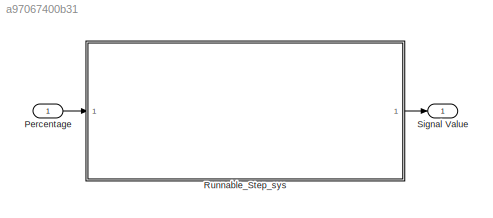
MODEL slx_a97067400b31
KIND model
CONFIG AbsTol = auto
CONFIG EnableMultiTasking = on
CONFIG FixedStep = 0.005
CONFIG MaxStep = auto
CONFIG MinStep = auto
CONFIG RelTol = 1e-3
CONFIG SampleTimeConstraint = Unconstrained
CONFIG SolverName = FixedStepDiscrete
CONFIG StartTime = 0.0
CONFIG StopTime = 10.0
BLOCK [Inport] Percentage
  OutDataTypeStr = single
  PortDimensions = 1
  SamplingMode = Sample based
  SignalType = real
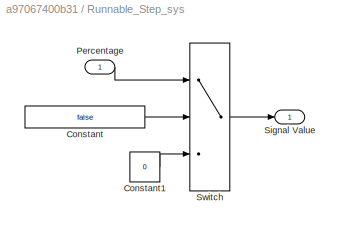
BLOCK [SubSystem] Runnable_Step_sys
  SystemSampleTime = Ts
  TreatAsAtomicUnit = on
BLOCK [Constant] Runnable_Step_sys/Constant
  Value = false
BLOCK [Constant] Runnable_Step_sys/Constant1
  Value = 0
BLOCK [Inport] Runnable_Step_sys/Percentage
BLOCK [Outport] Runnable_Step_sys/Signal Value
BLOCK [Switch] Runnable_Step_sys/Switch
  Criteria = u2 ~= 0
  InputSameDT = off
  SaturateOnIntegerOverflow = off
BLOCK [Outport] Signal Value
  OutDataTypeStr = single
  PortDimensions = 1
  SamplingMode = Sample based
  SignalType = real
LINE Percentage:1 -> Runnable_Step_sys:1
LINE Runnable_Step_sys/Constant1:1 -> Runnable_Step_sys/Switch:3
LINE Runnable_Step_sys/Constant:1 -> Runnable_Step_sys/Switch:2
LINE Runnable_Step_sys/Percentage:1 -> Runnable_Step_sys/Switch:1
LINE Runnable_Step_sys/Switch:1 -> Runnable_Step_sys/Signal Value:1
LINE Runnable_Step_sys:1 -> Signal Value:1
